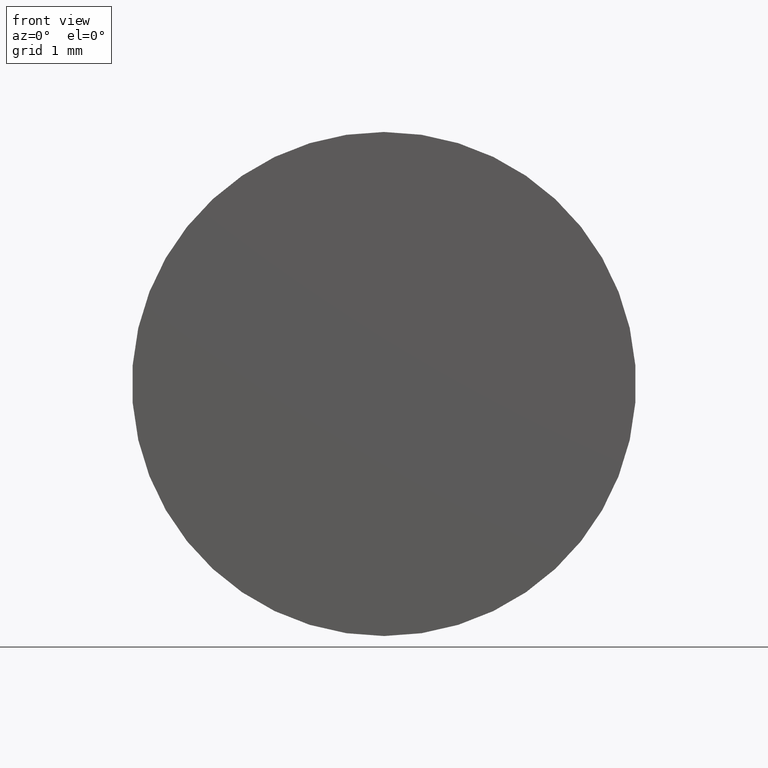
[diagram: clean part render]
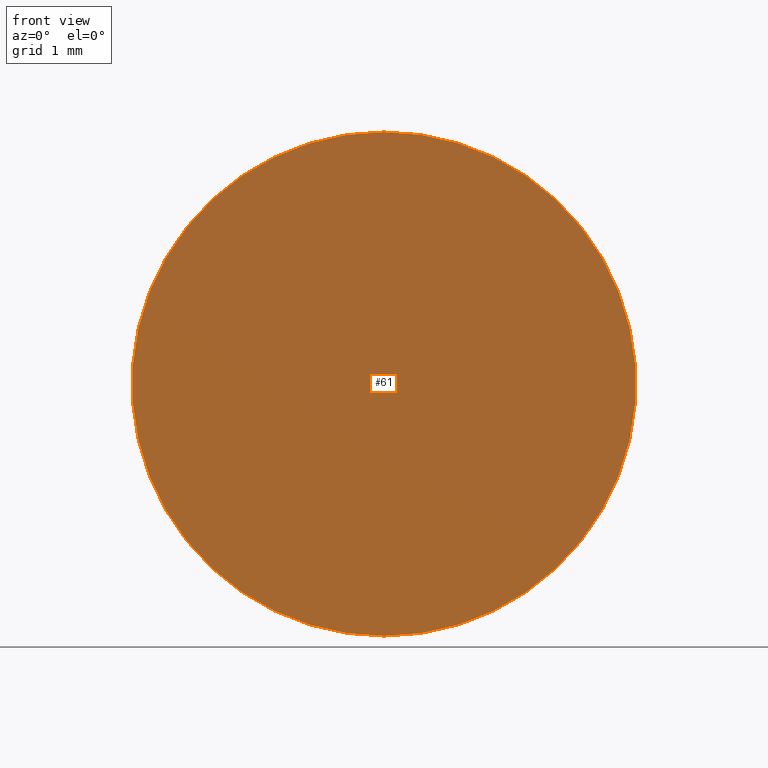
[diagram: same view with one face highlighted and labeled with its STEP entity id]
A machine part, front view. The second image highlights one B-rep face of the part: STEP entity #61.
In plain terms, the highlighted planar face has unit normal (0, -1, 0).
Its self-contained STEP definition (entity closure, byte-faithful):
#1 = AXIS2_PLACEMENT_3D ( 'NONE', #73, #138, #66 ) ;
#8 = EDGE_CURVE ( 'NONE', #137, #136, #131, .T. ) ;
#12 = DIRECTION ( 'NONE',  ( 0.000000000000000000, -0.000000000000000000, -1.000000000000000000 ) ) ;
#16 = FACE_OUTER_BOUND ( 'NONE', #103, .T. ) ;
#42 = ORIENTED_EDGE ( 'NONE', *, *, #8, .F. ) ;
#47 = CARTESIAN_POINT ( 'NONE',  ( 0.000000000000000000, -4.336808689942017736E-16, 3.000000000000000000 ) ) ;
#61 = ADVANCED_FACE ( 'NONE', ( #16 ), #75, .T. ) ;
#64 = DIRECTION ( 'NONE',  ( 0.000000000000000000, -1.000000000000000000, 0.000000000000000000 ) ) ;
#66 = DIRECTION ( 'NONE',  ( 0.000000000000000000, 0.000000000000000000, 1.000000000000000000 ) ) ;
#71 = ORIENTED_EDGE ( 'NONE', *, *, #124, .F. ) ;
#73 = CARTESIAN_POINT ( 'NONE',  ( 0.000000000000000000, -4.336808689942017736E-16, 0.000000000000000000 ) ) ;
#75 = PLANE ( 'NONE',  #199 ) ;
#83 = CARTESIAN_POINT ( 'NONE',  ( 3.673940397442059868E-16, -4.336808689942017736E-16, -3.000000000000000000 ) ) ;
#90 = DIRECTION ( 'NONE',  ( 0.000000000000000000, 0.000000000000000000, 1.000000000000000000 ) ) ;
#103 = EDGE_LOOP ( 'NONE', ( #71, #42 ) ) ;
#119 = CARTESIAN_POINT ( 'NONE',  ( 0.000000000000000000, -1.836970198721029688E-16, 0.000000000000000000 ) ) ;
#124 = EDGE_CURVE ( 'NONE', #136, #137, #169, .T. ) ;
#131 = CIRCLE ( 'NONE', #160, 3.000000000000000000 ) ;
#136 = VERTEX_POINT ( 'NONE', #47 ) ;
#137 = VERTEX_POINT ( 'NONE', #83 ) ;
#138 = DIRECTION ( 'NONE',  ( -0.000000000000000000, 1.000000000000000000, -0.000000000000000000 ) ) ;
#154 = CARTESIAN_POINT ( 'NONE',  ( 0.000000000000000000, -4.336808689942017736E-16, 0.000000000000000000 ) ) ;
#160 = AXIS2_PLACEMENT_3D ( 'NONE', #154, #168, #90 ) ;
#168 = DIRECTION ( 'NONE',  ( -0.000000000000000000, 1.000000000000000000, -0.000000000000000000 ) ) ;
#169 = CIRCLE ( 'NONE', #1, 3.000000000000000000 ) ;
#199 = AXIS2_PLACEMENT_3D ( 'NONE', #119, #64, #12 ) ;